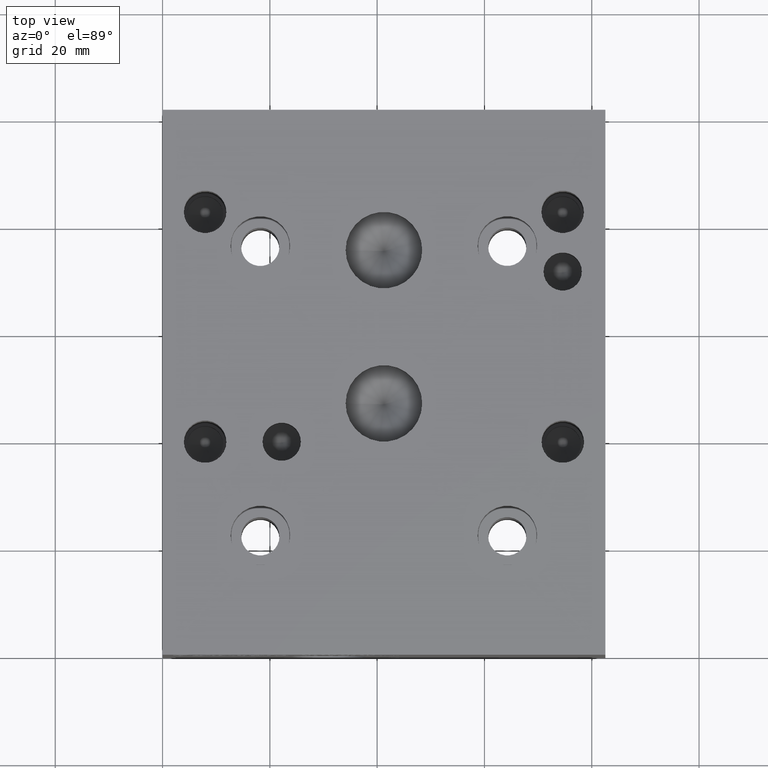
[diagram: clean part render]
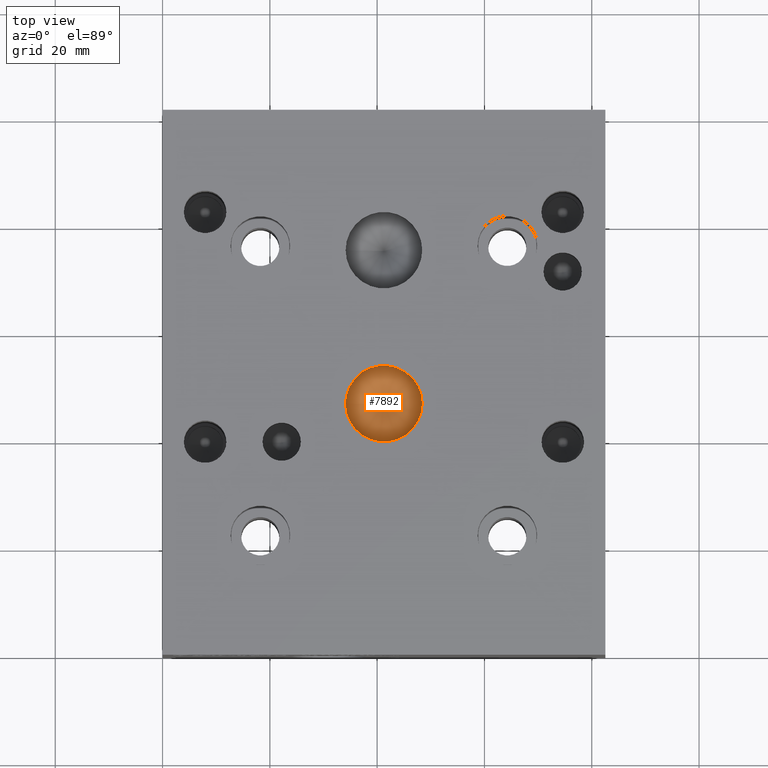
[diagram: same view with one face highlighted and labeled with its STEP entity id]
A machine part, top view. The second image highlights one B-rep face of the part: STEP entity #7892.
In plain terms, the highlighted conical surface has half-angle 60 deg.
Its self-contained STEP definition (entity closure, byte-faithful):
#17=CONICAL_SURFACE('',#8290,3.5687,1.0471975511966);
#746=CIRCLE('',#8291,7.1374);
#747=CIRCLE('',#8292,7.1374);
#1195=FACE_OUTER_BOUND('',#1647,.T.);
#1647=EDGE_LOOP('',(#7095,#7096,#7097,#7098));
#2458=LINE('',#13216,#3249);
#3249=VECTOR('',#9845,3.5687);
#3959=VERTEX_POINT('',#13212);
#3960=VERTEX_POINT('',#13213);
#3961=VERTEX_POINT('',#13215);
#5023=EDGE_CURVE('',#3959,#3960,#746,.T.);
#5024=EDGE_CURVE('',#3960,#3961,#2458,.T.);
#5025=EDGE_CURVE('',#3960,#3959,#747,.T.);
#7095=ORIENTED_EDGE('',*,*,#5023,.T.);
#7096=ORIENTED_EDGE('',*,*,#5024,.T.);
#7097=ORIENTED_EDGE('',*,*,#5024,.F.);
#7098=ORIENTED_EDGE('',*,*,#5025,.T.);
#7892=ADVANCED_FACE('',(#1195),#17,.F.);
#8290=AXIS2_PLACEMENT_3D('',#13211,#9841,#9842);
#8291=AXIS2_PLACEMENT_3D('',#13214,#9843,#9844);
#8292=AXIS2_PLACEMENT_3D('',#13217,#9846,#9847);
#9841=DIRECTION('center_axis',(0.,0.,1.));
#9842=DIRECTION('ref_axis',(1.,0.,0.));
#9843=DIRECTION('center_axis',(0.,0.,1.));
#9844=DIRECTION('ref_axis',(1.,0.,0.));
#9845=DIRECTION('',(0.866025403784439,1.06057523872491E-16,-0.5));
#9846=DIRECTION('center_axis',(0.,0.,1.));
#9847=DIRECTION('ref_axis',(1.,0.,0.));
#13211=CARTESIAN_POINT('Origin',(41.2496,46.8376,31.918830094343));
#13212=CARTESIAN_POINT('',(48.387,46.8376,33.97922));
#13213=CARTESIAN_POINT('',(34.1122,46.8376,33.97922));
#13214=CARTESIAN_POINT('Origin',(41.2496,46.8376,33.97922));
#13215=CARTESIAN_POINT('',(41.2496,46.8376,29.858440188686));
#13216=CARTESIAN_POINT('',(37.6809,46.8376,31.918830094343));
#13217=CARTESIAN_POINT('Origin',(41.2496,46.8376,33.97922));